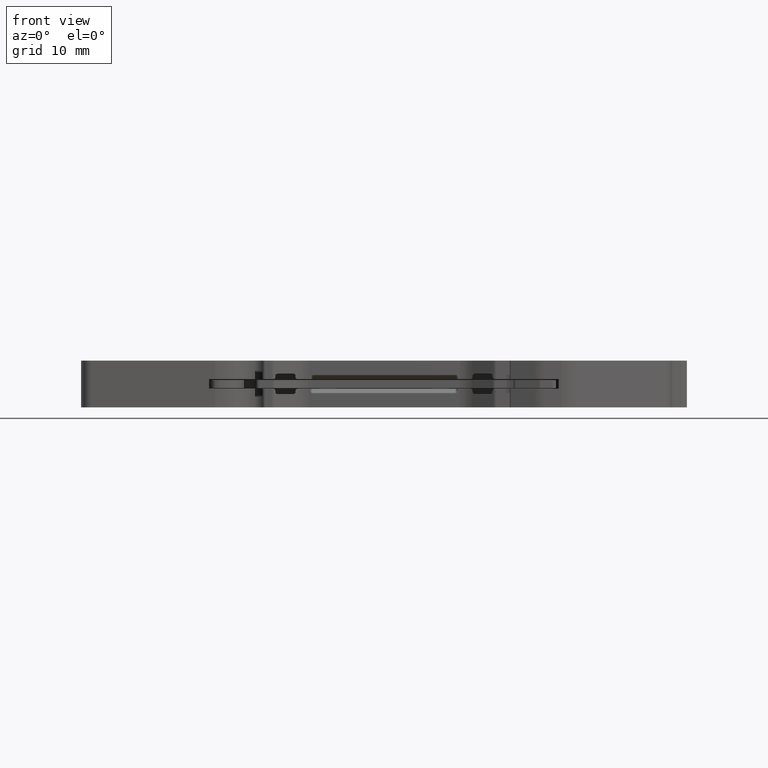
[diagram: clean part render]
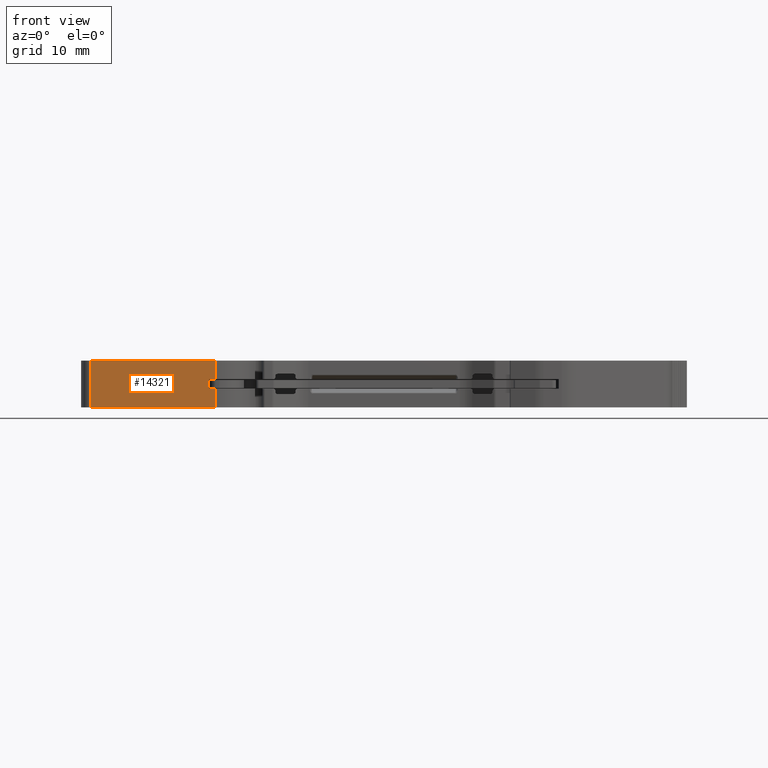
[diagram: same view with one face highlighted and labeled with its STEP entity id]
A machine part, front view. The second image highlights one B-rep face of the part: STEP entity #14321.
In plain terms, the highlighted planar face has unit normal (0, 1, 0).
Its self-contained STEP definition (entity closure, byte-faithful):
#69 = VECTOR ( 'NONE', #23879, 1000.000000000000000 ) ;
#347 = DIRECTION ( 'NONE',  ( -1.000000000000000000, 0.000000000000000000, 0.000000000000000000 ) ) ;
#451 = CARTESIAN_POINT ( 'NONE',  ( 1908.518066412710141, 470.1626068240739755, -0.5999999999999999778 ) ) ;
#650 = PLANE ( 'NONE',  #4149 ) ;
#1009 = VERTEX_POINT ( 'NONE', #9053 ) ;
#1107 = EDGE_CURVE ( 'NONE', #30009, #6110, #9823, .T. ) ;
#1186 = LINE ( 'NONE', #14835, #20398 ) ;
#2037 = LINE ( 'NONE', #14880, #19158 ) ;
#4149 = AXIS2_PLACEMENT_3D ( 'NONE', #24676, #26537, #5770 ) ;
#5013 = DIRECTION ( 'NONE',  ( 0.000000000000000000, 0.000000000000000000, 1.000000000000000000 ) ) ;
#5321 = LINE ( 'NONE', #7337, #24242 ) ;
#5433 = CARTESIAN_POINT ( 'NONE',  ( 1893.067982536070076, 470.1626068240739755, 2.899999999999999911 ) ) ;
#5466 = CARTESIAN_POINT ( 'NONE',  ( 1908.518066412710141, 470.1626068240739755, -2.899999999999999911 ) ) ;
#5770 = DIRECTION ( 'NONE',  ( 0.000000000000000000, 0.000000000000000000, 1.000000000000000000 ) ) ;
#6110 = VERTEX_POINT ( 'NONE', #18013 ) ;
#6595 = LINE ( 'NONE', #18662, #8619 ) ;
#7337 = CARTESIAN_POINT ( 'NONE',  ( 0.000000000000000000, 470.1626068240739755, -2.899999999999999911 ) ) ;
#7765 = ORIENTED_EDGE ( 'NONE', *, *, #26448, .F. ) ;
#8050 = CARTESIAN_POINT ( 'NONE',  ( 1893.067982536070076, 470.1626068240739755, -2.899999999999999911 ) ) ;
#8619 = VECTOR ( 'NONE', #9064, 1000.000000000000000 ) ;
#9053 = CARTESIAN_POINT ( 'NONE',  ( 1908.518066412710141, 470.1626068240739755, 0.5999999999999999778 ) ) ;
#9064 = DIRECTION ( 'NONE',  ( -1.000000000000000000, 4.177685300582320068E-15, 0.000000000000000000 ) ) ;
#9611 = VERTEX_POINT ( 'NONE', #16634 ) ;
#9735 = ORIENTED_EDGE ( 'NONE', *, *, #29878, .F. ) ;
#9823 = LINE ( 'NONE', #16471, #15895 ) ;
#10094 = DIRECTION ( 'NONE',  ( 0.000000000000000000, 0.000000000000000000, 1.000000000000000000 ) ) ;
#10276 = FACE_OUTER_BOUND ( 'NONE', #21152, .T. ) ;
#10650 = EDGE_CURVE ( 'NONE', #1009, #17871, #6595, .T. ) ;
#12216 = ORIENTED_EDGE ( 'NONE', *, *, #24165, .F. ) ;
#12876 = EDGE_CURVE ( 'NONE', #9611, #17230, #15847, .T. ) ;
#14321 = ADVANCED_FACE ( 'NONE', ( #10276 ), #650, .F. ) ;
#14345 = CARTESIAN_POINT ( 'NONE',  ( 1907.709902099469900, 470.1626068240739755, -0.5999999999999999778 ) ) ;
#14424 = ORIENTED_EDGE ( 'NONE', *, *, #30358, .T. ) ;
#14835 = CARTESIAN_POINT ( 'NONE',  ( 1907.709902099469900, 470.1626068240739755, -2.925000000000000266 ) ) ;
#14880 = CARTESIAN_POINT ( 'NONE',  ( 1893.067982536070076, 470.1626068240739755, -7.100000000000000533 ) ) ;
#14990 = DIRECTION ( 'NONE',  ( 0.000000000000000000, 0.000000000000000000, -1.000000000000000000 ) ) ;
#15847 = LINE ( 'NONE', #20208, #16944 ) ;
#15895 = VECTOR ( 'NONE', #5013, 1000.000000000000000 ) ;
#16143 = VERTEX_POINT ( 'NONE', #8050 ) ;
#16471 = CARTESIAN_POINT ( 'NONE',  ( 1908.518066412710141, 470.1626068240739755, -2.925000000000000266 ) ) ;
#16634 = CARTESIAN_POINT ( 'NONE',  ( 1908.518066412710141, 470.1626068240739755, 2.899999999999999911 ) ) ;
#16733 = CARTESIAN_POINT ( 'NONE',  ( 1908.518066412710141, 470.1626068240739755, -2.925000000000000266 ) ) ;
#16944 = VECTOR ( 'NONE', #25309, 1000.000000000000000 ) ;
#17073 = ORIENTED_EDGE ( 'NONE', *, *, #10650, .F. ) ;
#17230 = VERTEX_POINT ( 'NONE', #5433 ) ;
#17871 = VERTEX_POINT ( 'NONE', #28604 ) ;
#17993 = VERTEX_POINT ( 'NONE', #14345 ) ;
#18013 = CARTESIAN_POINT ( 'NONE',  ( 1908.518066412710141, 470.1626068240739755, -0.5999999999999999778 ) ) ;
#18662 = CARTESIAN_POINT ( 'NONE',  ( 1908.518066412710141, 470.1626068240739755, 0.5999999999999999778 ) ) ;
#19158 = VECTOR ( 'NONE', #10094, 1000.000000000000000 ) ;
#20208 = CARTESIAN_POINT ( 'NONE',  ( 0.000000000000000000, 470.1626068240739755, 2.899999999999999911 ) ) ;
#20398 = VECTOR ( 'NONE', #14990, 1000.000000000000000 ) ;
#21152 = EDGE_LOOP ( 'NONE', ( #9735, #23800, #24865, #12216, #17073, #14424, #27347, #7765 ) ) ;
#21564 = DIRECTION ( 'NONE',  ( 0.000000000000000000, 0.000000000000000000, 1.000000000000000000 ) ) ;
#23800 = ORIENTED_EDGE ( 'NONE', *, *, #1107, .T. ) ;
#23879 = DIRECTION ( 'NONE',  ( -1.000000000000000000, 4.177685300582320068E-15, 0.000000000000000000 ) ) ;
#24165 = EDGE_CURVE ( 'NONE', #17871, #17993, #1186, .T. ) ;
#24242 = VECTOR ( 'NONE', #347, 1000.000000000000000 ) ;
#24676 = CARTESIAN_POINT ( 'NONE',  ( 0.000000000000000000, 470.1626068240739755, -7.100000000000000533 ) ) ;
#24865 = ORIENTED_EDGE ( 'NONE', *, *, #28716, .T. ) ;
#25309 = DIRECTION ( 'NONE',  ( -1.000000000000000000, 0.000000000000000000, 0.000000000000000000 ) ) ;
#25895 = LINE ( 'NONE', #16733, #29298 ) ;
#26448 = EDGE_CURVE ( 'NONE', #16143, #17230, #2037, .T. ) ;
#26537 = DIRECTION ( 'NONE',  ( 0.000000000000000000, 1.000000000000000000, 0.000000000000000000 ) ) ;
#27347 = ORIENTED_EDGE ( 'NONE', *, *, #12876, .T. ) ;
#28506 = LINE ( 'NONE', #451, #69 ) ;
#28604 = CARTESIAN_POINT ( 'NONE',  ( 1907.709902099469900, 470.1626068240739755, 0.5999999999999999778 ) ) ;
#28716 = EDGE_CURVE ( 'NONE', #6110, #17993, #28506, .T. ) ;
#29298 = VECTOR ( 'NONE', #21564, 1000.000000000000000 ) ;
#29878 = EDGE_CURVE ( 'NONE', #30009, #16143, #5321, .T. ) ;
#30009 = VERTEX_POINT ( 'NONE', #5466 ) ;
#30358 = EDGE_CURVE ( 'NONE', #1009, #9611, #25895, .T. ) ;